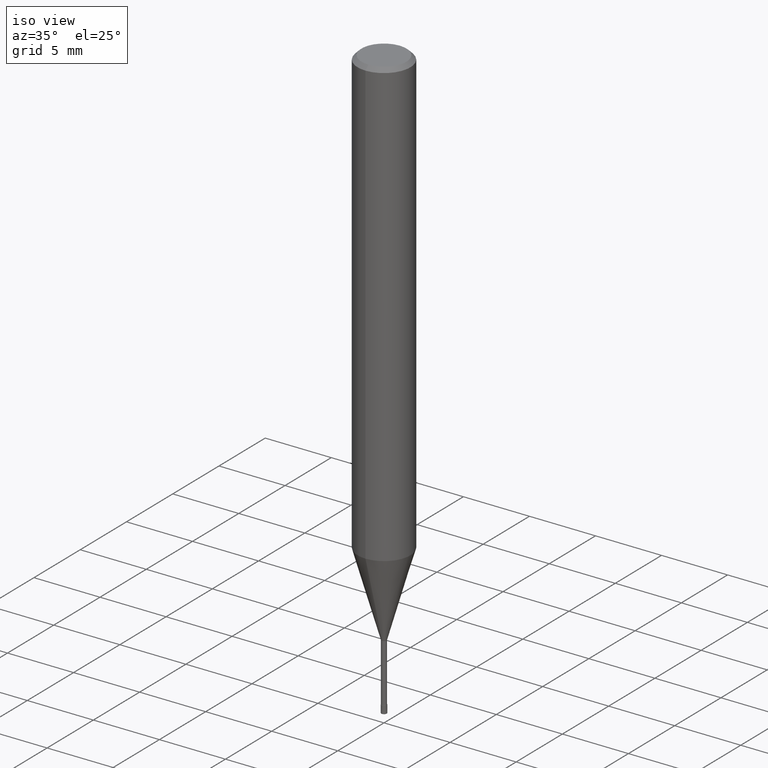
[diagram: clean part render]
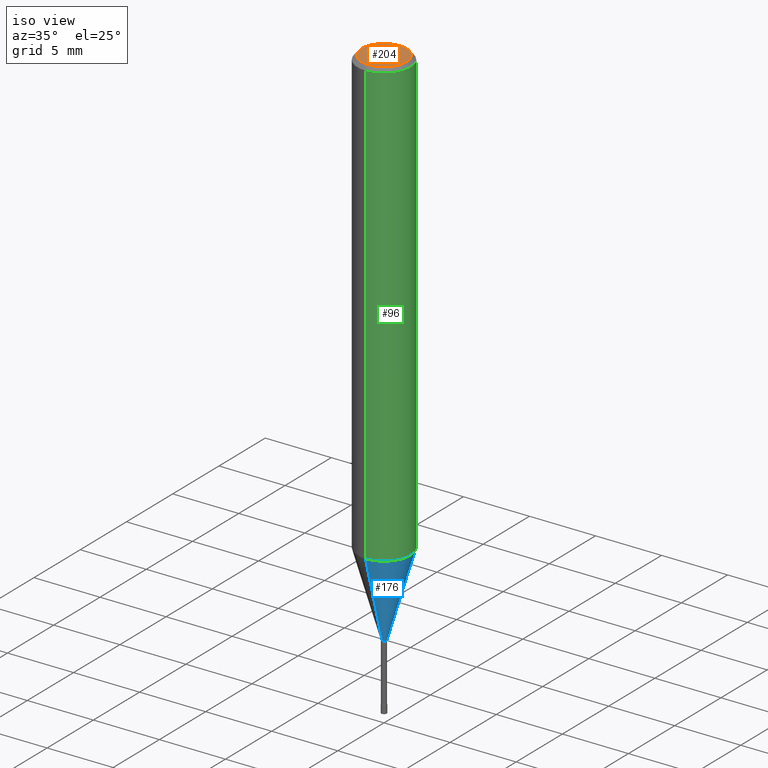
[diagram: same view with three faces highlighted in distinct colors, each labeled with its STEP entity id]
A machine part, iso view with three faces highlighted in distinct colors.
Their STEP definitions:

[orange] entity #204 — the highlighted planar face has unit normal (-0, 0, 1).
#102=EDGE_CURVE('',#186,#122,#240,.T.);
#122=VERTEX_POINT('',#262);
#186=VERTEX_POINT('',#336);
#194=EDGE_CURVE('',#122,#186,#345,.T.);
#204=ADVANCED_FACE('',(#355),#356,.T.);
#240=CIRCLE('',#390,1.7);
#262=CARTESIAN_POINT('',(0.0,1.7,0.0));
#336=CARTESIAN_POINT('',(2.08183080149804E-016,-1.7,0.0));
#345=CIRCLE('',#521,1.7);
#355=FACE_OUTER_BOUND('',#534,.T.);
#356=PLANE('',#535);
#390=AXIS2_PLACEMENT_3D('',#557,#558,#559);
#521=AXIS2_PLACEMENT_3D('',#690,#691,#692);
#534=EDGE_LOOP('',(#703,#704));
#535=AXIS2_PLACEMENT_3D('',#705,#706,#707);
#557=CARTESIAN_POINT('',(0.0,0.0,0.0));
#558=DIRECTION('',(0.0,0.0,-1.0));
#559=DIRECTION('',(0.0,1.0,0.0));
#690=CARTESIAN_POINT('',(0.0,0.0,0.0));
#691=DIRECTION('',(0.0,0.0,-1.0));
#692=DIRECTION('',(0.0,1.0,0.0));
#703=ORIENTED_EDGE('',*,*,#194,.F.);
#704=ORIENTED_EDGE('',*,*,#102,.F.);
#705=CARTESIAN_POINT('',(0.0,0.85,0.0));
#706=DIRECTION('',(-0.0,0.0,1.0));
#707=DIRECTION('',(0.0,-1.0,0.0));

[blue] entity #176 — the highlighted conical surface has half-angle 16.001 deg.
#98=EDGE_CURVE('',#150,#124,#236,.T.);
#110=EDGE_CURVE('',#124,#160,#248,.T.);
#124=VERTEX_POINT('',#264);
#136=EDGE_CURVE('',#190,#150,#277,.T.);
#142=EDGE_CURVE('',#190,#160,#283,.T.);
#150=VERTEX_POINT('',#292);
#160=VERTEX_POINT('',#302);
#176=ADVANCED_FACE('',(#321),#322,.T.);
#190=VERTEX_POINT('',#341);
#236=CIRCLE('',#383,0.18995);
#248=LINE('',#402,#403);
#264=CARTESIAN_POINT('',(2.3261397690856E-017,-0.18995,-40.0));
#277=LINE('',#439,#440);
#283=CIRCLE('',#449,1.99995);
#292=CARTESIAN_POINT('',(0.0,0.18995,-40.0));
#302=CARTESIAN_POINT('',(2.44915147732706E-016,-1.99995,-33.688));
#321=FACE_OUTER_BOUND('',#495,.T.);
#322=CONICAL_SURFACE('',#496,1.09495,0.279261921280279);
#341=CARTESIAN_POINT('',(0.0,1.99995,-33.688));
#383=AXIS2_PLACEMENT_3D('',#553,#554,#555);
#402=CARTESIAN_POINT('',(1.34088272711781E-016,-1.09495,-36.844));
#403=VECTOR('',#564,1.0);
#439=CARTESIAN_POINT('',(-1.34088272711781E-016,1.09495,-36.844));
#440=VECTOR('',#594,1.0);
#449=AXIS2_PLACEMENT_3D('',#601,#602,#603);
#495=EDGE_LOOP('',(#648,#649,#650,#651));
#496=AXIS2_PLACEMENT_3D('',#652,#653,#654);
#553=CARTESIAN_POINT('',(0.0,0.0,-40.0));
#554=DIRECTION('',(0.0,0.0,-1.0));
#555=DIRECTION('',(0.0,1.0,0.0));
#564=DIRECTION('',(3.37558135426109E-017,-0.275646238787252,0.961259148743169));
#594=DIRECTION('',(3.37558135426109E-017,-0.275646238787252,-0.961259148743169));
#601=CARTESIAN_POINT('',(0.0,0.0,-33.688));
#602=DIRECTION('',(0.0,0.0,-1.0));
#603=DIRECTION('',(0.0,1.0,0.0));
#648=ORIENTED_EDGE('',*,*,#136,.F.);
#649=ORIENTED_EDGE('',*,*,#142,.T.);
#650=ORIENTED_EDGE('',*,*,#110,.F.);
#651=ORIENTED_EDGE('',*,*,#98,.F.);
#652=CARTESIAN_POINT('',(0.0,0.0,-36.844));
#653=DIRECTION('',(-0.0,-0.0,1.0));
#654=DIRECTION('',(0.0,1.0,0.0));

[green] entity #96 — the highlighted cylindrical surface (edge-blend (fillet) strip) has radius 2 mm, axis along (-0, -0, 1).
#96=ADVANCED_FACE('',(#233),#234,.T.);
#100=EDGE_CURVE('',#132,#106,#238,.T.);
#106=VERTEX_POINT('',#244);
#116=VERTEX_POINT('',#256);
#126=EDGE_CURVE('',#116,#196,#266,.T.);
#132=VERTEX_POINT('',#273);
#158=EDGE_CURVE('',#116,#106,#300,.T.);
#196=VERTEX_POINT('',#347);
#198=EDGE_CURVE('',#196,#132,#349,.T.);
#233=FACE_OUTER_BOUND('',#379,.T.);
#234=CYLINDRICAL_SURFACE('',#380,2.0);
#238=LINE('',#386,#387);
#244=CARTESIAN_POINT('',(2.44921270764475E-016,-2.0,-0.299999999999997));
#256=CARTESIAN_POINT('',(0.0,2.0,-0.299999999999997));
#266=LINE('',#425,#426);
#273=CARTESIAN_POINT('',(2.44921270764475E-016,-2.0,-33.688));
#300=CIRCLE('',#470,2.0);
#347=CARTESIAN_POINT('',(0.0,2.0,-33.688));
#349=CIRCLE('',#526,2.0);
#379=EDGE_LOOP('',(#546,#547,#548,#549));
#380=AXIS2_PLACEMENT_3D('',#550,#551,#552);
#386=CARTESIAN_POINT('',(2.44921270764475E-016,-2.0,-16.994));
#387=VECTOR('',#556,1.0);
#425=CARTESIAN_POINT('',(-2.44921270764475E-016,2.0,-16.994));
#426=VECTOR('',#583,1.0);
#470=AXIS2_PLACEMENT_3D('',#620,#621,#622);
#526=AXIS2_PLACEMENT_3D('',#693,#694,#695);
#546=ORIENTED_EDGE('',*,*,#126,.F.);
#547=ORIENTED_EDGE('',*,*,#158,.T.);
#548=ORIENTED_EDGE('',*,*,#100,.F.);
#549=ORIENTED_EDGE('',*,*,#198,.F.);
#550=CARTESIAN_POINT('',(0.0,0.0,-16.994));
#551=DIRECTION('',(-0.0,-0.0,1.0));
#552=DIRECTION('',(0.0,1.0,0.0));
#556=DIRECTION('',(-0.0,-0.0,1.0));
#583=DIRECTION('',(0.0,0.0,-1.0));
#620=CARTESIAN_POINT('',(0.0,0.0,-0.299999999999997));
#621=DIRECTION('',(0.0,0.0,-1.0));
#622=DIRECTION('',(0.0,1.0,0.0));
#693=CARTESIAN_POINT('',(0.0,0.0,-33.688));
#694=DIRECTION('',(0.0,0.0,-1.0));
#695=DIRECTION('',(0.0,1.0,0.0));